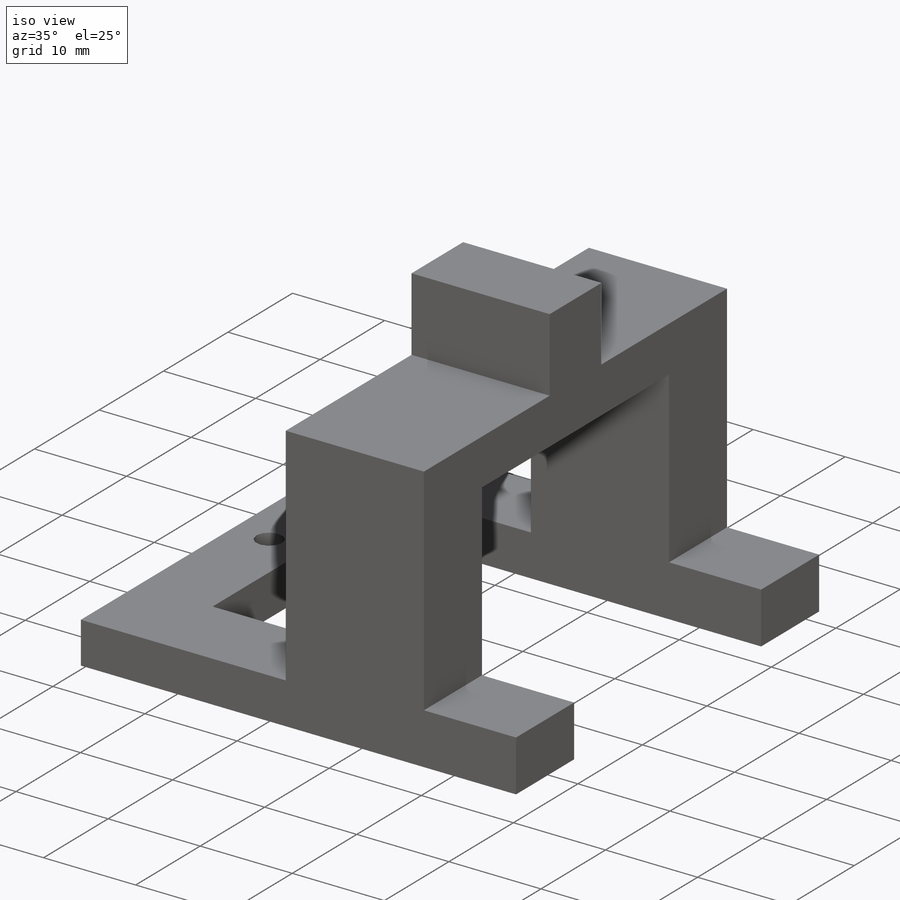
[diagram: iso view]
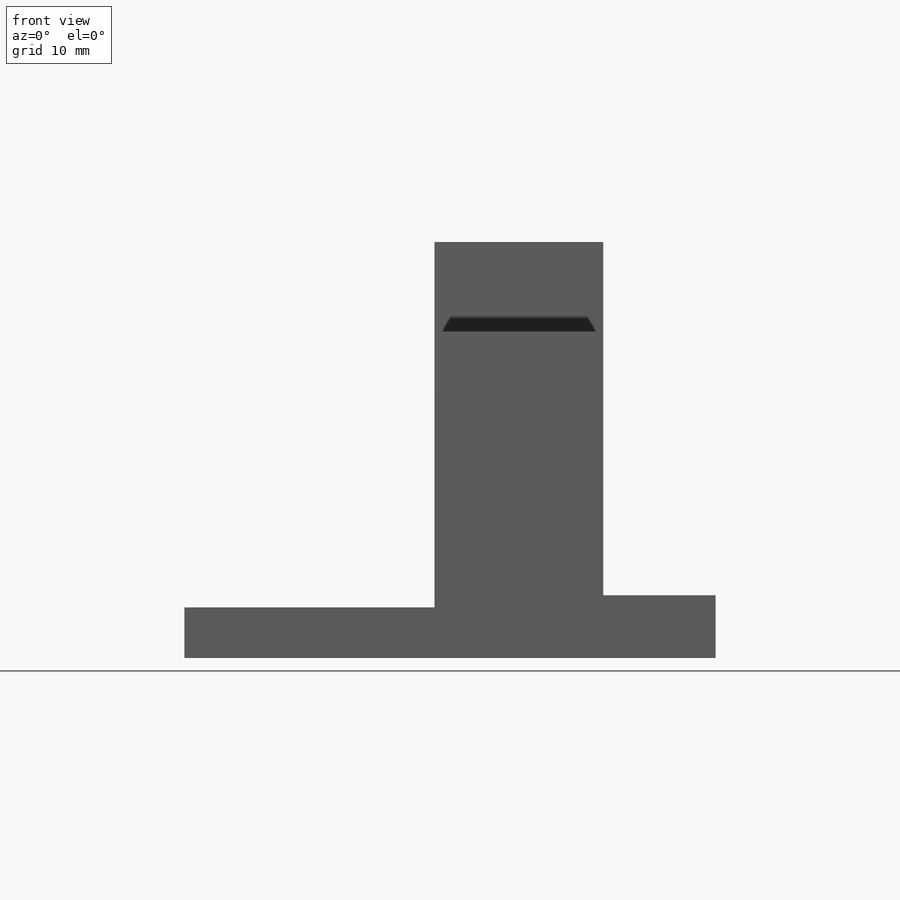
[diagram: front view]
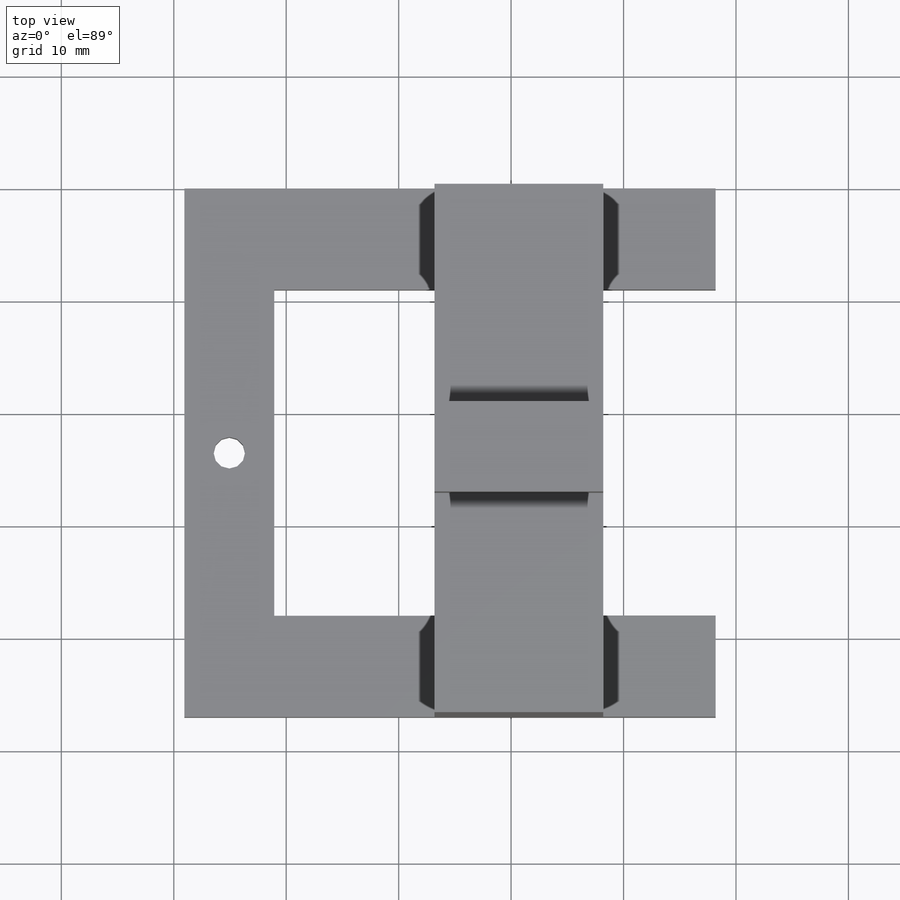
[diagram: top view]
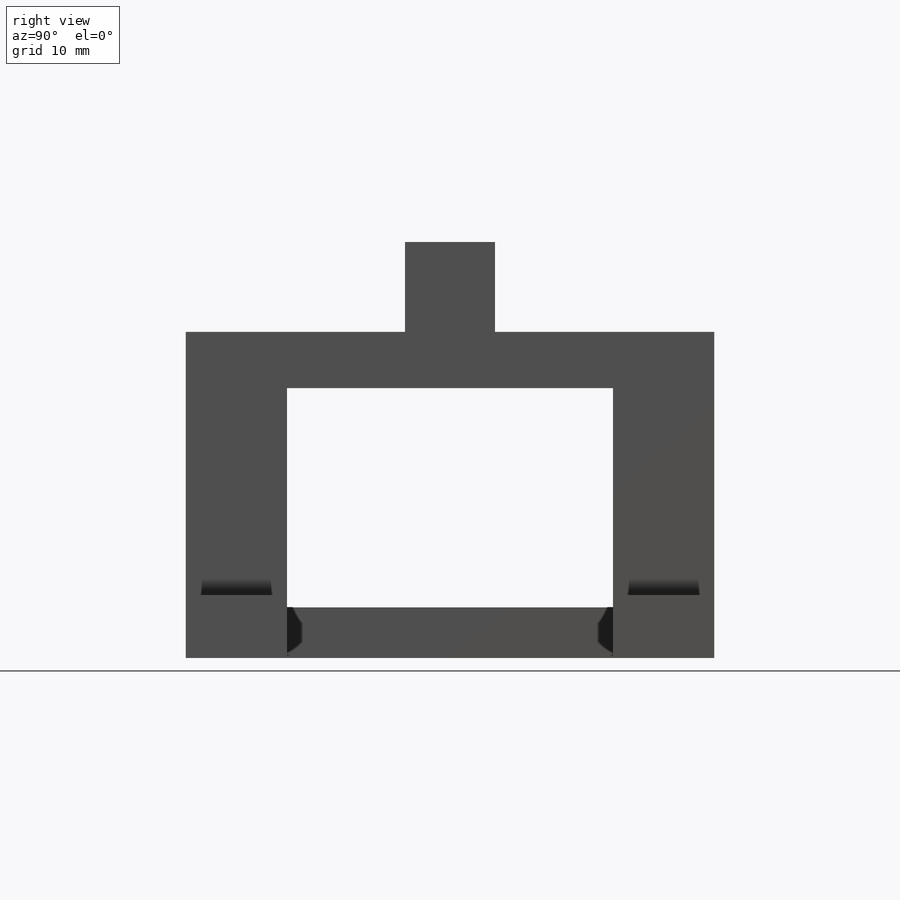
[diagram: right view]
SOLIDWORKS PART (.sldprt)
format: sldprt  version: not decoded by parser v0  size: 247,808 bytes
history: native  units: mm
features: sketch x5, cut_extrude x3, extrude x2, material x1 + 1 further entry (+12 scaffold rows collapsed)
feature tree (24):
  scaffold x12  (default folders/planes/origin — collapsed)
  material  "Material <not specified>"
  "Annotations"  RD1=5.58mm
  sketch  "Sketch1"  dims[c1.D1=15.0mm c1.D2=29.0mm c1.D3=10.0mm c2.D2=4.5mm c2.D4=~4.736786mm c2.D3=5.58mm c3.D4=29.0mm]
  extrude  "Boss-Extrude1"  Depth=47mm
  sketch  "Sketch2"  dims[c1.D1=9.0mm c1.D2=8.0mm c1.D3=8.0mm c2.D2=5.0mm c2.D3=8.0mm c2.D4=8.0mm c2.D5=47.0mm]
  extrude  "Boss-Extrude2"  Depth=15mm
  sketch  "Sketch4"  dims[D1=9.0mm D2=5.0mm]
  cut_extrude  "Cut-Extrude4"  Depth=15mm
  sketch  "Sketch5"  dims[D1=4.5mm]
  cut_extrude  "Cut-Extrude5"  Depth=39.25mm
  sketch  "Sketch7"  dims[D1=2.8mm]
  cut_extrude  "Cut-Extrude6"  Depth=39.25mm
decode coverage: 10 of 10 modeling features carry decoded parameters; 1 rows unclassified (native names shown)
note: ~ marks probable driven/reference dimensions
note: suppression state not decoded; provenance and decode notes live in map.json
